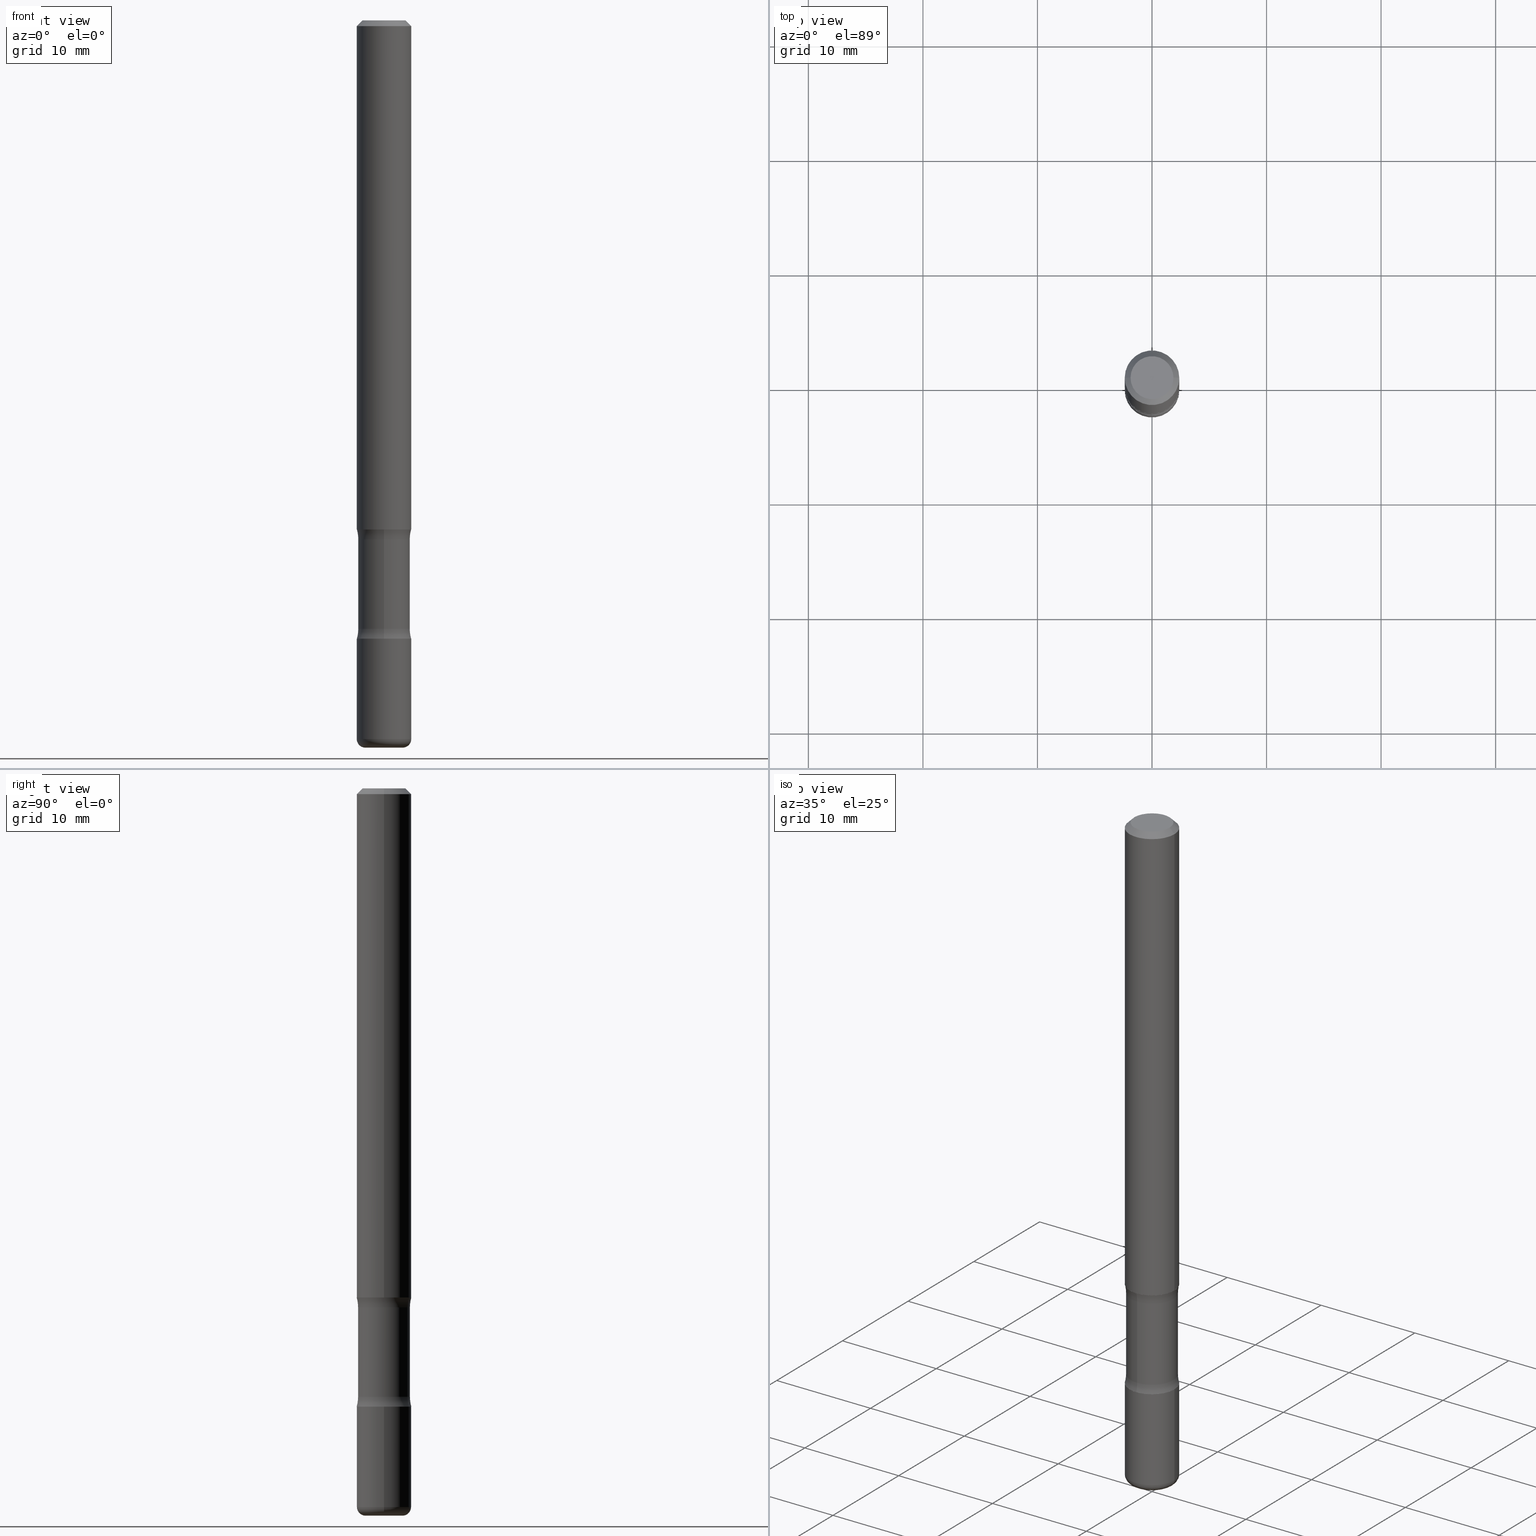
[diagram: canonical four-view strip — front | top / right | iso, engineering-drawing reading convention]
A machine part, canonical four-view strip (front | top / right | iso — engineering-drawing reading convention). The complete STEP part file that produces these views, byte-faithful:
ISO-10303-21;
HEADER;
FILE_DESCRIPTION (( 'STEP AP203' ),
    '1' );
FILE_NAME ('37780.STEP',
    '2024-03-02T00:15:42',
    ( '' ),
    ( '' ),
    'SwSTEP 2.0',
    'SolidWorks 2023',
    '' );
FILE_SCHEMA (( 'CONFIG_CONTROL_DESIGN' ));
ENDSEC;

DATA;
#1 = FACE_OUTER_BOUND ( 'NONE', #407, .T. ) ;
#2 = EDGE_CURVE ( 'NONE', #464, #239, #297, .T. ) ;
#3 = APPROVAL_DATE_TIME ( #451, #300 ) ;
#4 = ORIENTED_EDGE ( 'NONE', *, *, #142, .T. ) ;
#5 = CIRCLE ( 'NONE', #113, 0.07374999999999984346 ) ;
#6 = AXIS2_PLACEMENT_3D ( 'NONE', #68, #258, #172 ) ;
#7 = VERTEX_POINT ( 'NONE', #197 ) ;
#8 = PRODUCT_DEFINITION ( 'UNKNOWN', '', #61, #358 ) ;
#9 = DIRECTION ( 'NONE',  ( 6.982962677686265133E-15, 1.000000000000000000, -6.134676196298701332E-15 ) ) ;
#10 = DIRECTION ( 'NONE',  ( 1.000000000000000000, -6.982962677686268288E-15, 4.883557194083112901E-29 ) ) ;
#11 = DIRECTION ( 'NONE',  ( -6.982962677686265922E-15, -1.000000000000000000, 0.000000000000000000 ) ) ;
#12 = ORIENTED_EDGE ( 'NONE', *, *, #62, .F. ) ;
#13 = CARTESIAN_POINT ( 'NONE',  ( -0.09374999999999981959, 5.848231242562233185E-16, -0.02000000000000001776 ) ) ;
#14 = CARTESIAN_POINT ( 'NONE',  ( 0.06375000000000007050, -9.173867217810364919E-15, -2.500000000000000000 ) ) ;
#15 = DIRECTION ( 'NONE',  ( -1.000000000000000000, 6.982962677686267499E-15, 0.000000000000000000 ) ) ;
#16 = DIRECTION ( 'NONE',  ( 2.553476385947133355E-29, -3.336808337214295667E-15, -1.000000000000000000 ) ) ;
#17 = EDGE_LOOP ( 'NONE', ( #302, #115, #65, #373 ) ) ;
#18 = CARTESIAN_POINT ( 'NONE',  ( 4.890937612370276662E-31, -6.982962677686296539E-17, -0.02000000000000001776 ) ) ;
#19 = ORIENTED_EDGE ( 'NONE', *, *, #2, .F. ) ;
#20 = CARTESIAN_POINT ( 'NONE',  ( 0.000000000000000000, 0.000000000000000000, 0.000000000000000000 ) ) ;
#21 = CIRCLE ( 'NONE', #552, 0.09374999999999981959 ) ;
#22 = PLANE ( 'NONE',  #152 ) ;
#23 = CLOSED_SHELL ( 'NONE', ( #321, #29, #389, #167, #414, #501, #207, #75 ) ) ;
#24 = ADVANCED_FACE ( 'NONE', ( #319 ), #120, .T. ) ;
#25 = ORIENTED_EDGE ( 'NONE', *, *, #337, .F. ) ;
#26 = ORIENTED_EDGE ( 'NONE', *, *, #265, .T. ) ;
#27 = EDGE_LOOP ( 'NONE', ( #222, #38, #517, #162 ) ) ;
#28 = AXIS2_PLACEMENT_3D ( 'NONE', #359, #535, #538 ) ;
#29 = ADVANCED_FACE ( 'NONE', ( #493 ), #82, .F. ) ;
#30 = CARTESIAN_POINT ( 'NONE',  ( 1.494790448192259658E-15, 0.2140624999999937161, -1.783910210022205289 ) ) ;
#31 = CIRCLE ( 'NONE', #185, 0.06375000000000007050 ) ;
#32 = ORIENTED_EDGE ( 'NONE', *, *, #382, .F. ) ;
#33 = MECHANICAL_CONTEXT ( 'NONE', #155, 'mechanical' ) ;
#34 = EDGE_LOOP ( 'NONE', ( #456, #471, #324, #356 ) ) ;
#35 = CARTESIAN_POINT ( 'NONE',  ( 6.154174857873591467E-29, -8.670700971497045879E-15, -2.500000000000000000 ) ) ;
#36 = DIRECTION ( 'NONE',  ( 1.000000000000000000, 0.000000000000000000, 0.000000000000000000 ) ) ;
#37 = CARTESIAN_POINT ( 'NONE',  ( 4.279570410823988484E-29, -6.110092342975504671E-15, -1.750000000000000000 ) ) ;
#38 = ORIENTED_EDGE ( 'NONE', *, *, #51, .T. ) ;
#39 = CC_DESIGN_PERSON_AND_ORGANIZATION_ASSIGNMENT ( #50, #220, ( #73 ) ) ;
#40 = AXIS2_PLACEMENT_3D ( 'NONE', #20, #192, #190 ) ;
#41 = CIRCLE ( 'NONE', #455, 0.08906249999999993339 ) ;
#42 = ORIENTED_EDGE ( 'NONE', *, *, #201, .T. ) ;
#43 = AXIS2_PLACEMENT_3D ( 'NONE', #431, #89, #341 ) ;
#44 = LINE ( 'NONE', #384, #315 ) ;
#45 = LINE ( 'NONE', #439, #230 ) ;
#46 = PLANE ( 'NONE',  #353 ) ;
#47 = DATE_AND_TIME ( #186, #392 ) ;
#48 = CIRCLE ( 'NONE', #498, 0.07374999999999984346 ) ;
#49 = COORDINATED_UNIVERSAL_TIME_OFFSET ( 5, 0, .BEHIND. ) ;
#50 = PERSON_AND_ORGANIZATION ( #486, #231 ) ;
#51 = EDGE_CURVE ( 'NONE', #525, #7, #329, .T. ) ;
#52 = DIRECTION ( 'NONE',  ( -2.445468806185136597E-29, 3.491481338843145583E-15, 1.000000000000000000 ) ) ;
#53 = AXIS2_PLACEMENT_3D ( 'NONE', #306, #366, #446 ) ;
#54 = APPROVAL_STATUS ( 'not_yet_approved' ) ;
#55 = APPROVAL_PERSON_ORGANIZATION ( #93, #300, #140 ) ;
#56 = AXIS2_PLACEMENT_3D ( 'NONE', #417, #325, #553 ) ;
#57 = EDGE_LOOP ( 'NONE', ( #424, #494, #513, #429 ) ) ;
#58 = DIRECTION ( 'NONE',  ( 1.000000000000000000, -6.982962677686265922E-15, 0.000000000000000000 ) ) ;
#59 = DIRECTION ( 'NONE',  ( -2.445468806185136597E-29, 3.491481338843145583E-15, 1.000000000000000000 ) ) ;
#60 = DIRECTION ( 'NONE',  ( -2.445468806185136597E-29, 3.491481338843145583E-15, 1.000000000000000000 ) ) ;
#61 = PRODUCT_DEFINITION_FORMATION_WITH_SPECIFIED_SOURCE ( 'ANY', '', #210, .NOT_KNOWN. ) ;
#62 = EDGE_CURVE ( 'NONE', #526, #464, #541, .T. ) ;
#63 = DIRECTION ( 'NONE',  ( 6.982962677686265133E-15, 1.000000000000000000, -3.067338098149350666E-15 ) ) ;
#64 = DIRECTION ( 'NONE',  ( 6.982962677686265922E-15, 1.000000000000000000, -3.336808337214296061E-15 ) ) ;
#65 = ORIENTED_EDGE ( 'NONE', *, *, #470, .T. ) ;
#66 = DIRECTION ( 'NONE',  ( -2.445468806185136877E-29, 3.491481338843145188E-15, 1.000000000000000000 ) ) ;
#67 = ORIENTED_EDGE ( 'NONE', *, *, #109, .F. ) ;
#68 = CARTESIAN_POINT ( 'NONE',  ( 5.196621213143415268E-29, -7.419397845041685201E-15, -2.125000000000000000 ) ) ;
#69 = VERTEX_POINT ( 'NONE', #298 ) ;
#70 = DIRECTION ( 'NONE',  ( -6.982962677686265922E-15, -1.000000000000000000, 3.336808337214295667E-15 ) ) ;
#71 = DIRECTION ( 'NONE',  ( 2.553476385947133355E-29, -3.336808337214295667E-15, -1.000000000000000000 ) ) ;
#72 = AXIS2_PLACEMENT_3D ( 'NONE', #139, #105, #444 ) ;
#73 = SECURITY_CLASSIFICATION ( '', '', #360 ) ;
#74 = LENGTH_MEASURE_WITH_UNIT ( LENGTH_MEASURE( 0.02539999999999999897 ), #296 );
#75 = ADVANCED_FACE ( 'NONE', ( #247 ), #165, .T. ) ;
#76 = DIRECTION ( 'NONE',  ( 2.438088387897960049E-29, -3.491481338843145188E-15, -1.000000000000000000 ) ) ;
#77 = EDGE_CURVE ( 'NONE', #246, #217, #546, .T. ) ;
#78 = CARTESIAN_POINT ( 'NONE',  ( 5.110032292609207884E-29, -7.306245973522905960E-15, -2.091089789977795821 ) ) ;
#79 = LINE ( 'NONE', #252, #393 ) ;
#80 = DIRECTION ( 'NONE',  ( 1.000000000000000000, -6.982962677686269866E-15, 0.000000000000000000 ) ) ;
#81 = CIRCLE ( 'NONE', #403, 0.09375000000000004163 ) ;
#82 = TOROIDAL_SURFACE ( 'NONE', #489, 0.2140624999999999889, 0.1250000000000000278 ) ;
#83 = ORIENTED_EDGE ( 'NONE', *, *, #268, .T. ) ;
#84 = FACE_OUTER_BOUND ( 'NONE', #504, .T. ) ;
#85 = DIRECTION ( 'NONE',  ( -1.000000000000000000, 6.982962677686265922E-15, -4.876176775795935793E-29 ) ) ;
#86 = FACE_OUTER_BOUND ( 'NONE', #57, .T. ) ;
#87 = FACE_OUTER_BOUND ( 'NONE', #34, .T. ) ;
#88 = PERSON_AND_ORGANIZATION_ROLE ( 'creator' ) ;
#89 = DIRECTION ( 'NONE',  ( -2.445468806185136597E-29, 3.491481338843145583E-15, 1.000000000000000000 ) ) ;
#90 = COORDINATED_UNIVERSAL_TIME_OFFSET ( 5, 0, .BEHIND. ) ;
#91 = AXIS2_PLACEMENT_3D ( 'NONE', #410, #16, #317 ) ;
#92 = APPROVAL_PERSON_ORGANIZATION ( #398, #255, #394 ) ;
#93 = PERSON_AND_ORGANIZATION ( #486, #231 ) ;
#94 = TOROIDAL_SURFACE ( 'NONE', #56, 0.2140624999999999889, 0.1250000000000000278 ) ;
#95 = ORIENTED_EDGE ( 'NONE', *, *, #335, .F. ) ;
#96 = CARTESIAN_POINT ( 'NONE',  ( 6.219201134814836160E-16, 0.08906249999999261979, -2.091089789977795821 ) ) ;
#97 = DIRECTION ( 'NONE',  ( 1.000000000000000000, -6.982962677686265922E-15, 0.000000000000000000 ) ) ;
#98 = CYLINDRICAL_SURFACE ( 'NONE', #496, 0.09374999999999991673 ) ;
#99 = CARTESIAN_POINT ( 'NONE',  ( -0.06375000000000007050, -8.170987912895507894E-15, -2.470000000000000639 ) ) ;
#100 = SHAPE_DEFINITION_REPRESENTATION ( #183, #163 ) ;
#101 = DIRECTION ( 'NONE',  ( 2.445468806185136597E-29, -3.491481338843145583E-15, -1.000000000000000000 ) ) ;
#102 = CARTESIAN_POINT ( 'NONE',  ( 6.040307951277289098E-29, -8.623958906942573151E-15, -2.470000000000000639 ) ) ;
#103 = TOROIDAL_SURFACE ( 'NONE', #413, 0.06375000000000007050, 0.02999999999999971440 ) ;
#104 = EDGE_CURVE ( 'NONE', #7, #237, #118, .T. ) ;
#105 = DIRECTION ( 'NONE',  ( 1.000000000000000000, -6.860497997771530774E-15, 4.842693077587735886E-29 ) ) ;
#106 = CARTESIAN_POINT ( 'NONE',  ( -0.09374999999999994449, -7.957825092167479227E-15, -2.470000000000000639 ) ) ;
#107 = ORIENTED_EDGE ( 'NONE', *, *, #488, .F. ) ;
#108 = DIRECTION ( 'NONE',  ( 2.553476385947133355E-29, -3.336808337214295667E-15, -1.000000000000000000 ) ) ;
#109 = EDGE_CURVE ( 'NONE', #322, #217, #79, .T. ) ;
#110 = CIRCLE ( 'NONE', #28, 0.09375000000000002776 ) ;
#111 = ORIENTED_EDGE ( 'NONE', *, *, #450, .F. ) ;
#112 = AXIS2_PLACEMENT_3D ( 'NONE', #511, #385, #557 ) ;
#113 = AXIS2_PLACEMENT_3D ( 'NONE', #235, #59, #232 ) ;
#114 = CC_DESIGN_PERSON_AND_ORGANIZATION_ASSIGNMENT ( #514, #551, ( #210 ) ) ;
#115 = ORIENTED_EDGE ( 'NONE', *, *, #227, .T. ) ;
#116 = CARTESIAN_POINT ( 'NONE',  ( 5.113694852322927974E-29, -7.301000979552905916E-15, -2.091089789977795821 ) ) ;
#117 = CARTESIAN_POINT ( 'NONE',  ( 4.325656488947447574E-29, -6.281246590105103764E-15, -1.783910210022204623 ) ) ;
#118 = LINE ( 'NONE', #204, #225 ) ;
#119 = DIRECTION ( 'NONE',  ( -2.445468806185136597E-29, 3.491481338843145583E-15, 1.000000000000000000 ) ) ;
#120 = CONICAL_SURFACE ( 'NONE', #245, 0.09374999999999981959, 0.7853981633974472798 ) ;
#121 = CARTESIAN_POINT ( 'NONE',  ( 4.338651280918389502E-29, -6.262637308385086581E-15, -1.783910210022204401 ) ) ;
#122 = CARTESIAN_POINT ( 'NONE',  ( 4.239067568413239630E-29, -6.168094718586322946E-15, -1.750000000000000000 ) ) ;
#123 = ORIENTED_EDGE ( 'NONE', *, *, #420, .F. ) ;
#124 = CARTESIAN_POINT ( 'NONE',  ( -0.07374999999999984346, 5.499083108677921624E-16, -3.723527850031186263E-30 ) ) ;
#125 = APPROVAL_DATE_TIME ( #129, #198 ) ;
#126 = VERTEX_POINT ( 'NONE', #400 ) ;
#127 = ORIENTED_EDGE ( 'NONE', *, *, #488, .T. ) ;
#128 = DIRECTION ( 'NONE',  ( 6.860497997771531562E-15, 1.000000000000000000, 0.000000000000000000 ) ) ;
#129 = DATE_AND_TIME ( #469, #545 ) ;
#130 = AXIS2_PLACEMENT_3D ( 'NONE', #216, #396, #97 ) ;
#131 = EDGE_CURVE ( 'NONE', #466, #322, #274, .T. ) ;
#132 = CC_DESIGN_APPROVAL ( #255, ( #73 ) ) ;
#133 = DIRECTION ( 'NONE',  ( 1.000000000000000000, -6.982962677686269866E-15, 0.000000000000000000 ) ) ;
#134 = DIRECTION ( 'NONE',  ( 6.982962677686265922E-15, 1.000000000000000000, -3.336808337214295667E-15 ) ) ;
#135 = CARTESIAN_POINT ( 'NONE',  ( 4.279570410823988484E-29, -6.110092342975504671E-15, -1.750000000000000000 ) ) ;
#136 = EDGE_CURVE ( 'NONE', #483, #237, #405, .T. ) ;
#137 = CARTESIAN_POINT ( 'NONE',  ( 0.09374999999999981959, -7.130013140679428044E-16, -0.02000000000000001776 ) ) ;
#138 = PERSON_AND_ORGANIZATION_ROLE ( 'design_supplier' ) ;
#139 = CARTESIAN_POINT ( 'NONE',  ( -1.468575352647916884E-15, -0.2140625000000072886, -2.091089789977794933 ) ) ;
#140 = APPROVAL_ROLE ( '' ) ;
#141 = FACE_OUTER_BOUND ( 'NONE', #27, .T. ) ;
#142 = EDGE_CURVE ( 'NONE', #69, #239, #41, .T. ) ;
#143 = AXIS2_PLACEMENT_3D ( 'NONE', #99, #473, #144 ) ;
#144 = DIRECTION ( 'NONE',  ( -1.000000000000000000, 7.105427357600993970E-15, 0.000000000000000000 ) ) ;
#145 = DIRECTION ( 'NONE',  ( 1.000000000000000000, -6.982962677686266711E-15, 4.876176775795935793E-29 ) ) ;
#146 = PERSON_AND_ORGANIZATION ( #486, #231 ) ;
#147 = CARTESIAN_POINT ( 'NONE',  ( 6.546527510331397661E-16, 0.09374999999999261702, -2.125000000000000444 ) ) ;
#148 = EDGE_LOOP ( 'NONE', ( #500, #484 ) ) ;
#149 = DIRECTION ( 'NONE',  ( -2.445468806185136597E-29, 3.491481338843145583E-15, 1.000000000000000000 ) ) ;
#150 = DIRECTION ( 'NONE',  ( 1.000000000000000000, -6.982962677686267499E-15, 0.000000000000000000 ) ) ;
#151 = FACE_OUTER_BOUND ( 'NONE', #422, .T. ) ;
#152 = AXIS2_PLACEMENT_3D ( 'NONE', #367, #156, #277 ) ;
#153 = DIRECTION ( 'NONE',  ( 1.000000000000000000, -6.982962677686269866E-15, 0.000000000000000000 ) ) ;
#154 = ORIENTED_EDGE ( 'NONE', *, *, #375, .T. ) ;
#155 = APPLICATION_CONTEXT ( 'configuration controlled 3d designs of mechanical parts and assemblies' ) ;
#156 = DIRECTION ( 'NONE',  ( 2.438088387897960049E-29, -3.491481338843145188E-15, -1.000000000000000000 ) ) ;
#157 = DIMENSIONAL_EXPONENTS ( 1.000000000000000000, 0.000000000000000000, 0.000000000000000000, 0.000000000000000000, 0.000000000000000000, 0.000000000000000000, 0.000000000000000000 ) ;
#158 = EDGE_LOOP ( 'NONE', ( #26, #419, #379, #111 ) ) ;
#159 = AXIS2_PLACEMENT_3D ( 'NONE', #555, #76, #85 ) ;
#160 = LOCAL_TIME ( 19, 15, 42.00000000000000000, #49 ) ;
#161 = ORIENTED_EDGE ( 'NONE', *, *, #77, .T. ) ;
#162 = ORIENTED_EDGE ( 'NONE', *, *, #136, .F. ) ;
#163 = ADVANCED_BREP_SHAPE_REPRESENTATION ( '37780', ( #530, #532, #339, #304 ), #544 ) ;
#164 = DIRECTION ( 'NONE',  ( -2.445468806185136597E-29, 3.491481338843145583E-15, 1.000000000000000000 ) ) ;
#165 = CYLINDRICAL_SURFACE ( 'NONE', #478, 0.08906249999999993339 ) ;
#166 = DIRECTION ( 'NONE',  ( 0.000000000000000000, 0.000000000000000000, 1.000000000000000000 ) ) ;
#167 = ADVANCED_FACE ( 'NONE', ( #276 ), #94, .F. ) ;
#168 = EDGE_CURVE ( 'NONE', #318, #253, #554, .T. ) ;
#169 = APPLICATION_PROTOCOL_DEFINITION ( 'international standard', 'config_control_design', 1994, #508 ) ;
#170 = CC_DESIGN_SECURITY_CLASSIFICATION ( #73, ( #61 ) ) ;
#171 = CARTESIAN_POINT ( 'NONE',  ( 0.09375000000000005551, -6.546527510330878985E-16, 4.571415727308692608E-30 ) ) ;
#172 = DIRECTION ( 'NONE',  ( 6.982962677686265922E-15, 1.000000000000000000, -2.913971193241879977E-15 ) ) ;
#173 = CARTESIAN_POINT ( 'NONE',  ( -6.270923951087611034E-16, -0.08906250000000623390, -1.783910210022204401 ) ) ;
#174 = CARTESIAN_POINT ( 'NONE',  ( -0.09375000000000002776, -7.355544561217034463E-15, -2.125000000000000000 ) ) ;
#175 = DIRECTION ( 'NONE',  ( 2.553476385947133355E-29, -3.336808337214295667E-15, -1.000000000000000000 ) ) ;
#176 = CARTESIAN_POINT ( 'NONE',  ( 4.279570410823988484E-29, -6.110092342975504671E-15, -1.750000000000000000 ) ) ;
#177 = FACE_OUTER_BOUND ( 'NONE', #250, .T. ) ;
#178 = CIRCLE ( 'NONE', #91, 0.08906249999999994726 ) ;
#179 = DIRECTION ( 'NONE',  ( -2.445468806185136597E-29, 3.491481338843145583E-15, 1.000000000000000000 ) ) ;
#180 = CARTESIAN_POINT ( 'NONE',  ( 6.154174857873591467E-29, -8.670700971497045879E-15, -2.500000000000000000 ) ) ;
#181 = CIRCLE ( 'NONE', #72, 0.1250000000000000278 ) ;
#182 = DIRECTION ( 'NONE',  ( 6.982962677686265922E-15, 1.000000000000000000, -2.913971193241877611E-15 ) ) ;
#183 = PRODUCT_DEFINITION_SHAPE ( 'NONE', 'NONE',  #8 ) ;
#184 = CIRCLE ( 'NONE', #279, 0.06375000000000007050 ) ;
#185 = AXIS2_PLACEMENT_3D ( 'NONE', #338, #443, #386 ) ;
#186 = CALENDAR_DATE ( 2024, 1, 3 ) ;
#187 = AXIS2_PLACEMENT_3D ( 'NONE', #409, #101, #15 ) ;
#188 = EDGE_LOOP ( 'NONE', ( #263, #497, #309, #412 ) ) ;
#189 = CARTESIAN_POINT ( 'NONE',  ( -0.06375000000000007050, -8.116778722614140245E-15, -2.500000000000000000 ) ) ;
#190 = DIRECTION ( 'NONE',  ( 1.000000000000000000, -6.982962677686266711E-15, 4.876176775795935793E-29 ) ) ;
#191 = PERSON_AND_ORGANIZATION ( #486, #231 ) ;
#192 = DIRECTION ( 'NONE',  ( -2.445468806185136597E-29, 3.491481338843145583E-15, 1.000000000000000000 ) ) ;
#193 = ORIENTED_EDGE ( 'NONE', *, *, #201, .F. ) ;
#194 = DIRECTION ( 'NONE',  ( 2.445468806185136597E-29, -3.491481338843145583E-15, -1.000000000000000000 ) ) ;
#195 = EDGE_LOOP ( 'NONE', ( #502, #123, #326, #281 ) ) ;
#196 = AXIS2_PLACEMENT_3D ( 'NONE', #37, #236, #133 ) ;
#197 = CARTESIAN_POINT ( 'NONE',  ( 0.09375000000000004163, -6.764745094008592175E-15, -1.750000000000000000 ) ) ;
#198 = APPROVAL ( #510, 'UNSPECIFIED' ) ;
#199 = AXIS2_PLACEMENT_3D ( 'NONE', #357, #149, #534 ) ;
#200 = DIRECTION ( 'NONE',  ( -1.000000000000000000, 6.982962677686265922E-15, -4.883557194083112901E-29 ) ) ;
#201 = EDGE_CURVE ( 'NONE', #495, #246, #290, .T. ) ;
#202 = FACE_OUTER_BOUND ( 'NONE', #242, .T. ) ;
#203 = CARTESIAN_POINT ( 'NONE',  ( 5.196621213143415268E-29, -7.419397845041685201E-15, -2.125000000000000000 ) ) ;
#204 = CARTESIAN_POINT ( 'NONE',  ( 0.09374999999999991673, -6.546527510330869125E-16, 4.571415727308685602E-30 ) ) ;
#205 = DIRECTION ( 'NONE',  ( -6.982962677686265922E-15, -1.000000000000000000, 0.000000000000000000 ) ) ;
#206 = LINE ( 'NONE', #383, #323 ) ;
#207 = ADVANCED_FACE ( 'NONE', ( #331 ), #461, .F. ) ;
#208 = CARTESIAN_POINT ( 'NONE',  ( -1.468575352647924772E-15, -0.2140625000000062339, -1.783910210022203513 ) ) ;
#209 =( CONVERSION_BASED_UNIT ( 'INCH', #74 ) LENGTH_UNIT ( ) NAMED_UNIT ( #157 ) );
#210 = PRODUCT ( '37780', '37780', '', ( #33 ) ) ;
#211 = DIRECTION ( 'NONE',  ( -2.445468806185136877E-29, 3.491481338843145188E-15, 1.000000000000000000 ) ) ;
#212 = CIRCLE ( 'NONE', #130, 0.09375000000000009714 ) ;
#213 = AXIS2_PLACEMENT_3D ( 'NONE', #117, #436, #342 ) ;
#214 = ORIENTED_EDGE ( 'NONE', *, *, #301, .T. ) ;
#215 = DIRECTION ( 'NONE',  ( 2.553476385947133355E-29, -3.336808337214295667E-15, -1.000000000000000000 ) ) ;
#216 = CARTESIAN_POINT ( 'NONE',  ( 6.040307951277289098E-29, -8.623958906942573151E-15, -2.470000000000000639 ) ) ;
#217 = VERTEX_POINT ( 'NONE', #174 ) ;
#218 = APPROVAL_DATE_TIME ( #47, #255 ) ;
#219 = ORIENTED_EDGE ( 'NONE', *, *, #269, .F. ) ;
#220 = PERSON_AND_ORGANIZATION_ROLE ( 'classification_officer' ) ;
#221 = DIRECTION ( 'NONE',  ( -2.445468806185136597E-29, 3.491481338843145583E-15, 1.000000000000000000 ) ) ;
#222 = ORIENTED_EDGE ( 'NONE', *, *, #515, .F. ) ;
#223 = AXIS2_PLACEMENT_3D ( 'NONE', #512, #60, #558 ) ;
#224 = UNCERTAINTY_MEASURE_WITH_UNIT (LENGTH_MEASURE( 1.000000000000000082E-05 ), #209, 'distance_accuracy_value', 'NONE');
#225 = VECTOR ( 'NONE', #426, 39.37007874015748143 ) ;
#226 = DATE_AND_TIME ( #267, #160 ) ;
#227 = EDGE_CURVE ( 'NONE', #499, #318, #433, .T. ) ;
#228 = DIRECTION ( 'NONE',  ( 2.553476385947133355E-29, -3.336808337214295667E-15, -1.000000000000000000 ) ) ;
#229 = FACE_OUTER_BOUND ( 'NONE', #148, .T. ) ;
#230 = VECTOR ( 'NONE', #462, 39.37007874015748143 ) ;
#231 = ORGANIZATION ( 'UNSPECIFIED', 'UNSPECIFIED', '' ) ;
#232 = DIRECTION ( 'NONE',  ( 1.000000000000000000, -6.982962677686266711E-15, 4.876176775795935793E-29 ) ) ;
#233 = DIRECTION ( 'NONE',  ( 2.553476385947133355E-29, -3.336808337214295667E-15, -1.000000000000000000 ) ) ;
#234 = CLOSED_SHELL ( 'NONE', ( #330, #447, #310, #262, #401, #520 ) ) ;
#235 = CARTESIAN_POINT ( 'NONE',  ( 0.000000000000000000, 0.000000000000000000, 0.000000000000000000 ) ) ;
#236 = DIRECTION ( 'NONE',  ( -2.445468806185136597E-29, 3.491481338843145583E-15, 1.000000000000000000 ) ) ;
#237 = VERTEX_POINT ( 'NONE', #137 ) ;
#238 = EDGE_LOOP ( 'NONE', ( #445, #25 ) ) ;
#239 = VERTEX_POINT ( 'NONE', #96 ) ;
#240 = CARTESIAN_POINT ( 'NONE',  ( -6.110131029264649859E-16, -0.08906250000000860700, -2.499999999999999556 ) ) ;
#241 = ORIENTED_EDGE ( 'NONE', *, *, #474, .T. ) ;
#242 = EDGE_LOOP ( 'NONE', ( #107, #275 ) ) ;
#243 = AXIS2_PLACEMENT_3D ( 'NONE', #121, #354, #441 ) ;
#244 = APPLICATION_PROTOCOL_DEFINITION ( 'international standard', 'config_control_design', 1994, #155 ) ;
#245 = AXIS2_PLACEMENT_3D ( 'NONE', #18, #194, #368 ) ;
#246 = VERTEX_POINT ( 'NONE', #388 ) ;
#247 = FACE_OUTER_BOUND ( 'NONE', #17, .T. ) ;
#248 = DIRECTION ( 'NONE',  ( -1.000000000000000000, 6.982962677686265922E-15, -4.883557194083112901E-29 ) ) ;
#249 = DIRECTION ( 'NONE',  ( 2.553476385947133355E-29, -3.336808337214295667E-15, -1.000000000000000000 ) ) ;
#250 = EDGE_LOOP ( 'NONE', ( #548, #292 ) ) ;
#251 = PLANE ( 'NONE',  #257 ) ;
#252 = CARTESIAN_POINT ( 'NONE',  ( -0.09375000000000005551, 6.661338147750943187E-16, -4.611501647113976798E-30 ) ) ;
#253 = VERTEX_POINT ( 'NONE', #449 ) ;
#254 = CARTESIAN_POINT ( 'NONE',  ( 8.726388948129611336E-30, -1.361158663068067946E-14, -2.125000000000000000 ) ) ;
#255 = APPROVAL ( #311, 'UNSPECIFIED' ) ;
#256 = AXIS2_PLACEMENT_3D ( 'NONE', #361, #531, #153 ) ;
#257 = AXIS2_PLACEMENT_3D ( 'NONE', #254, #432, #70 ) ;
#258 = DIRECTION ( 'NONE',  ( 2.553476385947133355E-29, -3.336808337214295667E-15, -1.000000000000000000 ) ) ;
#259 = DIRECTION ( 'NONE',  ( -2.438088387897960049E-29, 3.491481338843145188E-15, 1.000000000000000000 ) ) ;
#260 = COORDINATED_UNIVERSAL_TIME_OFFSET ( 5, 0, .BEHIND. ) ;
#261 = CC_DESIGN_PERSON_AND_ORGANIZATION_ASSIGNMENT ( #191, #88, ( #61 ) ) ;
#262 = ADVANCED_FACE ( 'NONE', ( #86 ), #378, .T. ) ;
#263 = ORIENTED_EDGE ( 'NONE', *, *, #227, .F. ) ;
#264 = ORIENTED_EDGE ( 'NONE', *, *, #438, .T. ) ;
#265 = EDGE_CURVE ( 'NONE', #423, #466, #31, .T. ) ;
#266 = CARTESIAN_POINT ( 'NONE',  ( 0.000000000000000000, 0.000000000000000000, 0.000000000000000000 ) ) ;
#267 = CALENDAR_DATE ( 2024, 1, 3 ) ;
#268 = EDGE_CURVE ( 'NONE', #526, #69, #181, .T. ) ;
#269 = EDGE_CURVE ( 'NONE', #365, #253, #327, .T. ) ;
#270 = AXIS2_PLACEMENT_3D ( 'NONE', #208, #347, #128 ) ;
#271 = ORIENTED_EDGE ( 'NONE', *, *, #282, .T. ) ;
#272 = LOCAL_TIME ( 19, 15, 42.00000000000000000, #479 ) ;
#273 = DIRECTION ( 'NONE',  ( 1.000000000000000000, -6.982962677686268288E-15, 0.000000000000000000 ) ) ;
#274 = CIRCLE ( 'NONE', #143, 0.02999999999999971440 ) ;
#275 = ORIENTED_EDGE ( 'NONE', *, *, #51, .F. ) ;
#276 = FACE_OUTER_BOUND ( 'NONE', #370, .T. ) ;
#277 = DIRECTION ( 'NONE',  ( -1.000000000000000000, 6.982962677686265922E-15, -4.876176775795935793E-29 ) ) ;
#278 = ADVANCED_FACE ( 'NONE', ( #141 ), #287, .T. ) ;
#279 = AXIS2_PLACEMENT_3D ( 'NONE', #314, #487, #273 ) ;
#280 = AXIS2_PLACEMENT_3D ( 'NONE', #435, #248, #11 ) ;
#281 = ORIENTED_EDGE ( 'NONE', *, *, #136, .T. ) ;
#282 = EDGE_CURVE ( 'NONE', #253, #365, #527, .T. ) ;
#283 = EDGE_LOOP ( 'NONE', ( #12, #83, #4, #19 ) ) ;
#284 = ORIENTED_EDGE ( 'NONE', *, *, #380, .F. ) ;
#285 = AXIS2_PLACEMENT_3D ( 'NONE', #348, #215, #182 ) ;
#286 = CARTESIAN_POINT ( 'NONE',  ( -0.09374999999999991673, 6.661338147750933326E-16, -4.611501647113969791E-30 ) ) ;
#287 = CYLINDRICAL_SURFACE ( 'NONE', #223, 0.09374999999999991673 ) ;
#288 = ORIENTED_EDGE ( 'NONE', *, *, #533, .F. ) ;
#289 = APPROVAL_ROLE ( '' ) ;
#290 = LINE ( 'NONE', #171, #352 ) ;
#291 = DIRECTION ( 'NONE',  ( 6.982962677686265922E-15, 1.000000000000000000, -2.913971193241877611E-15 ) ) ;
#292 = ORIENTED_EDGE ( 'NONE', *, *, #62, .T. ) ;
#293 = FACE_OUTER_BOUND ( 'NONE', #458, .T. ) ;
#294 = CARTESIAN_POINT ( 'NONE',  ( 6.040307951277289098E-29, -8.623958906942573151E-15, -2.470000000000000639 ) ) ;
#295 = EDGE_LOOP ( 'NONE', ( #284, #241, #264, #288 ) ) ;
#296 =( LENGTH_UNIT ( ) NAMED_UNIT ( * ) SI_UNIT ( $, .METRE. ) );
#297 = CIRCLE ( 'NONE', #280, 0.1250000000000000278 ) ;
#298 = CARTESIAN_POINT ( 'NONE',  ( -6.270923951087521301E-16, -0.08906250000000723310, -2.091089789977795377 ) ) ;
#299 =( NAMED_UNIT ( * ) SI_UNIT ( $, .STERADIAN. ) SOLID_ANGLE_UNIT ( ) );
#300 = APPROVAL ( #54, 'UNSPECIFIED' ) ;
#301 = EDGE_CURVE ( 'NONE', #239, #69, #350, .T. ) ;
#302 = ORIENTED_EDGE ( 'NONE', *, *, #418, .F. ) ;
#303 = AXIS2_PLACEMENT_3D ( 'NONE', #135, #259, #428 ) ;
#304 = AXIS2_PLACEMENT_3D ( 'NONE', #549, #166, #36 ) ;
#305 = AXIS2_PLACEMENT_3D ( 'NONE', #30, #200, #205 ) ;
#306 = CARTESIAN_POINT ( 'NONE',  ( 5.149934974793610063E-16, 0.07374999999999984346, -2.574967487396814399E-16 ) ) ;
#307 = CARTESIAN_POINT ( 'NONE',  ( 6.040307951277289098E-29, -8.623958906942573151E-15, -2.470000000000000639 ) ) ;
#308 = DATE_TIME_ROLE ( 'creation_date' ) ;
#309 = ORIENTED_EDGE ( 'NONE', *, *, #269, .T. ) ;
#310 = ADVANCED_FACE ( 'NONE', ( #416 ), #22, .T. ) ;
#311 = APPROVAL_STATUS ( 'not_yet_approved' ) ;
#312 = EDGE_LOOP ( 'NONE', ( #127, #340, #363, #542 ) ) ;
#313 = FACE_OUTER_BOUND ( 'NONE', #188, .T. ) ;
#314 = CARTESIAN_POINT ( 'NONE',  ( 6.113672015462842613E-29, -8.728703347107864943E-15, -2.500000000000000000 ) ) ;
#315 = VECTOR ( 'NONE', #437, 39.37007874015748143 ) ;
#316 = FACE_OUTER_BOUND ( 'NONE', #158, .T. ) ;
#317 = DIRECTION ( 'NONE',  ( 6.982962677686265133E-15, 1.000000000000000000, -3.067338098149349877E-15 ) ) ;
#318 = VERTEX_POINT ( 'NONE', #521 ) ;
#319 = FACE_OUTER_BOUND ( 'NONE', #295, .T. ) ;
#320 = ORIENTED_EDGE ( 'NONE', *, *, #364, .F. ) ;
#321 = ADVANCED_FACE ( 'NONE', ( #87 ), #440, .T. ) ;
#322 = VERTEX_POINT ( 'NONE', #106 ) ;
#323 = VECTOR ( 'NONE', #334, 39.37007874015748143 ) ;
#324 = ORIENTED_EDGE ( 'NONE', *, *, #301, .F. ) ;
#325 = DIRECTION ( 'NONE',  ( 2.553476385947133355E-29, -3.336808337214295667E-15, -1.000000000000000000 ) ) ;
#326 = ORIENTED_EDGE ( 'NONE', *, *, #533, .T. ) ;
#327 = CIRCLE ( 'NONE', #285, 0.09375000000000009714 ) ;
#328 = PERSON_AND_ORGANIZATION ( #486, #231 ) ;
#329 = CIRCLE ( 'NONE', #196, 0.09375000000000004163 ) ;
#330 = ADVANCED_FACE ( 'NONE', ( #151 ), #460, .T. ) ;
#331 = FACE_OUTER_BOUND ( 'NONE', #351, .T. ) ;
#332 = DIRECTION ( 'NONE',  ( 1.000000000000000000, -6.982962677686270655E-15, 0.000000000000000000 ) ) ;
#333 = ORIENTED_EDGE ( 'NONE', *, *, #408, .F. ) ;
#334 = DIRECTION ( 'NONE',  ( 2.553476385947133355E-29, -3.336808337214295667E-15, -1.000000000000000000 ) ) ;
#335 = EDGE_CURVE ( 'NONE', #464, #526, #110, .T. ) ;
#336 = PLANE ( 'NONE',  #159 ) ;
#337 = EDGE_CURVE ( 'NONE', #466, #423, #184, .T. ) ;
#338 = CARTESIAN_POINT ( 'NONE',  ( 6.113672015462842613E-29, -8.728703347107864943E-15, -2.500000000000000000 ) ) ;
#339 = MANIFOLD_SOLID_BREP ( 'Body-Move/Copy2[4]', #23 ) ;
#340 = ORIENTED_EDGE ( 'NONE', *, *, #515, .T. ) ;
#341 = DIRECTION ( 'NONE',  ( 1.000000000000000000, -6.982962677686266711E-15, 4.876176775795935793E-29 ) ) ;
#342 = DIRECTION ( 'NONE',  ( 6.982962677686265133E-15, 1.000000000000000000, -3.067338098149349877E-15 ) ) ;
#343 = AXIS2_PLACEMENT_3D ( 'NONE', #78, #233, #516 ) ;
#344 = AXIS2_PLACEMENT_3D ( 'NONE', #294, #179, #346 ) ;
#345 = EDGE_CURVE ( 'NONE', #495, #322, #430, .T. ) ;
#346 = DIRECTION ( 'NONE',  ( 1.000000000000000000, -6.982962677686268288E-15, 4.883557194083112901E-29 ) ) ;
#347 = DIRECTION ( 'NONE',  ( 1.000000000000000000, -6.860497997771530774E-15, 4.842693077587735886E-29 ) ) ;
#348 = CARTESIAN_POINT ( 'NONE',  ( 4.239067568413239630E-29, -6.168094718586322946E-15, -1.750000000000000000 ) ) ;
#349 = CARTESIAN_POINT ( 'NONE',  ( 4.279570410823988484E-29, -6.110092342975504671E-15, -1.750000000000000000 ) ) ;
#350 = CIRCLE ( 'NONE', #343, 0.08906249999999993339 ) ;
#351 = EDGE_LOOP ( 'NONE', ( #369, #95, #454, #214 ) ) ;
#352 = VECTOR ( 'NONE', #66, 39.37007874015748143 ) ;
#353 = AXIS2_PLACEMENT_3D ( 'NONE', #176, #523, #134 ) ;
#354 = DIRECTION ( 'NONE',  ( 2.553476385947133355E-29, -3.336808337214295667E-15, -1.000000000000000000 ) ) ;
#355 = DATE_AND_TIME ( #402, #272 ) ;
#356 = ORIENTED_EDGE ( 'NONE', *, *, #470, .F. ) ;
#357 = CARTESIAN_POINT ( 'NONE',  ( 5.196621213143415268E-29, -7.419397845041685201E-15, -2.125000000000000000 ) ) ;
#358 = DESIGN_CONTEXT ( 'detailed design', #508, 'design' ) ;
#359 = CARTESIAN_POINT ( 'NONE',  ( 5.196621213143415268E-29, -7.419397845041685201E-15, -2.125000000000000000 ) ) ;
#360 = SECURITY_CLASSIFICATION_LEVEL ( 'unclassified' ) ;
#361 = CARTESIAN_POINT ( 'NONE',  ( 0.06375000000000007050, -9.069122777645073127E-15, -2.470000000000000639 ) ) ;
#362 = DIRECTION ( 'NONE',  ( -2.445468806185136597E-29, 3.491481338843145583E-15, 1.000000000000000000 ) ) ;
#363 = ORIENTED_EDGE ( 'NONE', *, *, #438, .F. ) ;
#364 = EDGE_CURVE ( 'NONE', #318, #499, #178, .T. ) ;
#365 = VERTEX_POINT ( 'NONE', #491 ) ;
#366 = DIRECTION ( 'NONE',  ( 2.438088387897960049E-29, -3.491481338843145188E-15, -1.000000000000000000 ) ) ;
#367 = CARTESIAN_POINT ( 'NONE',  ( 6.113672015462842613E-29, -8.728703347107864943E-15, -2.500000000000000000 ) ) ;
#368 = DIRECTION ( 'NONE',  ( -1.000000000000000000, 6.982962677686267499E-15, 0.000000000000000000 ) ) ;
#369 = ORIENTED_EDGE ( 'NONE', *, *, #268, .F. ) ;
#370 = EDGE_LOOP ( 'NONE', ( #333, #320, #397, #271 ) ) ;
#371 = FACE_OUTER_BOUND ( 'NONE', #312, .T. ) ;
#372 = ADVANCED_FACE ( 'NONE', ( #229 ), #529, .F. ) ;
#373 = ORIENTED_EDGE ( 'NONE', *, *, #142, .F. ) ;
#374 = DIRECTION ( 'NONE',  ( 2.553476385947133355E-29, -3.336808337214295667E-15, -1.000000000000000000 ) ) ;
#375 = EDGE_CURVE ( 'NONE', #322, #495, #212, .T. ) ;
#376 = PRODUCT_RELATED_PRODUCT_CATEGORY ( 'detail', '', ( #210 ) ) ;
#377 = AXIS2_PLACEMENT_3D ( 'NONE', #180, #228, #9 ) ;
#378 = TOROIDAL_SURFACE ( 'NONE', #344, 0.06375000000000007050, 0.02999999999999971440 ) ;
#379 = ORIENTED_EDGE ( 'NONE', *, *, #345, .F. ) ;
#380 = EDGE_CURVE ( 'NONE', #126, #399, #48, .T. ) ;
#381 = ORIENTED_EDGE ( 'NONE', *, *, #282, .F. ) ;
#382 = EDGE_CURVE ( 'NONE', #217, #246, #452, .T. ) ;
#383 = CARTESIAN_POINT ( 'NONE',  ( 6.219201134814940684E-16, 0.08906249999999125977, -2.500000000000000444 ) ) ;
#384 = CARTESIAN_POINT ( 'NONE',  ( -0.09374999999999981959, 5.848231242562233185E-16, -0.02000000000000001776 ) ) ;
#385 = DIRECTION ( 'NONE',  ( 2.553476385947133355E-29, -3.336808337214295667E-15, -1.000000000000000000 ) ) ;
#386 = DIRECTION ( 'NONE',  ( 1.000000000000000000, -6.982962677686268288E-15, 0.000000000000000000 ) ) ;
#387 = CARTESIAN_POINT ( 'NONE',  ( -0.09375000000000004163, -2.423827170101085722E-15, -1.750000000000000000 ) ) ;
#388 = CARTESIAN_POINT ( 'NONE',  ( 0.09375000000000002776, -8.074050596074771916E-15, -2.125000000000000000 ) ) ;
#389 = ADVANCED_FACE ( 'NONE', ( #313 ), #539, .F. ) ;
#390 = LINE ( 'NONE', #240, #475 ) ;
#391 = AXIS2_PLACEMENT_3D ( 'NONE', #122, #175, #291 ) ;
#392 = LOCAL_TIME ( 19, 15, 42.00000000000000000, #260 ) ;
#393 = VECTOR ( 'NONE', #211, 39.37007874015748143 ) ;
#394 = APPROVAL_ROLE ( '' ) ;
#395 = DIRECTION ( 'NONE',  ( 1.000000000000000000, -6.982962677686266711E-15, 4.876176775795935793E-29 ) ) ;
#396 = DIRECTION ( 'NONE',  ( -2.445468806185136597E-29, 3.491481338843145583E-15, 1.000000000000000000 ) ) ;
#397 = ORIENTED_EDGE ( 'NONE', *, *, #168, .T. ) ;
#398 = PERSON_AND_ORGANIZATION ( #486, #231 ) ;
#399 = VERTEX_POINT ( 'NONE', #124 ) ;
#400 = CARTESIAN_POINT ( 'NONE',  ( 0.07374999999999984346, -6.094815207017961198E-16, 3.931526600461598749E-30 ) ) ;
#401 = ADVANCED_FACE ( 'NONE', ( #1 ), #518, .T. ) ;
#402 = CALENDAR_DATE ( 2024, 1, 3 ) ;
#403 = AXIS2_PLACEMENT_3D ( 'NONE', #349, #119, #80 ) ;
#404 = ORIENTED_EDGE ( 'NONE', *, *, #345, .T. ) ;
#405 = CIRCLE ( 'NONE', #509, 0.09374999999999981959 ) ;
#406 = PERSON_AND_ORGANIZATION ( #486, #231 ) ;
#407 = EDGE_LOOP ( 'NONE', ( #67, #154, #42, #32 ) ) ;
#408 = EDGE_CURVE ( 'NONE', #499, #365, #522, .T. ) ;
#409 = CARTESIAN_POINT ( 'NONE',  ( 4.890937612370276662E-31, -6.982962677686296539E-17, -0.02000000000000001776 ) ) ;
#410 = CARTESIAN_POINT ( 'NONE',  ( 4.325656488947447574E-29, -6.281246590105103764E-15, -1.783910210022204623 ) ) ;
#411 = CARTESIAN_POINT ( 'NONE',  ( 0.000000000000000000, 0.000000000000000000, 0.000000000000000000 ) ) ;
#412 = ORIENTED_EDGE ( 'NONE', *, *, #168, .F. ) ;
#413 = AXIS2_PLACEMENT_3D ( 'NONE', #307, #221, #10 ) ;
#414 = ADVANCED_FACE ( 'NONE', ( #84 ), #46, .F. ) ;
#415 = AXIS2_PLACEMENT_3D ( 'NONE', #203, #506, #332 ) ;
#416 = FACE_OUTER_BOUND ( 'NONE', #238, .T. ) ;
#417 = CARTESIAN_POINT ( 'NONE',  ( 4.338651280918389502E-29, -6.262637308385086581E-15, -1.783910210022204401 ) ) ;
#418 = EDGE_CURVE ( 'NONE', #499, #69, #390, .T. ) ;
#419 = ORIENTED_EDGE ( 'NONE', *, *, #131, .T. ) ;
#420 = EDGE_CURVE ( 'NONE', #399, #126, #5, .T. ) ;
#421 = ADVANCED_FACE ( 'NONE', ( #371 ), #98, .T. ) ;
#422 = EDGE_LOOP ( 'NONE', ( #404, #559, #543, #193 ) ) ;
#423 = VERTEX_POINT ( 'NONE', #14 ) ;
#424 = ORIENTED_EDGE ( 'NONE', *, *, #131, .F. ) ;
#425 = DIRECTION ( 'NONE',  ( -2.445468806185136877E-29, 3.491481338843145188E-15, 1.000000000000000000 ) ) ;
#426 = DIRECTION ( 'NONE',  ( -2.445468806185136877E-29, 3.491481338843145188E-15, 1.000000000000000000 ) ) ;
#427 =( NAMED_UNIT ( * ) PLANE_ANGLE_UNIT ( ) SI_UNIT ( $, .RADIAN. ) );
#428 = DIRECTION ( 'NONE',  ( 1.000000000000000000, -6.982962677686265922E-15, 4.876176775795935793E-29 ) ) ;
#429 = ORIENTED_EDGE ( 'NONE', *, *, #375, .F. ) ;
#430 = CIRCLE ( 'NONE', #467, 0.09375000000000009714 ) ;
#431 = CARTESIAN_POINT ( 'NONE',  ( 0.000000000000000000, 0.000000000000000000, 0.000000000000000000 ) ) ;
#432 = DIRECTION ( 'NONE',  ( -2.553476385947132794E-29, 3.336808337214295667E-15, 1.000000000000000000 ) ) ;
#433 = CIRCLE ( 'NONE', #213, 0.08906249999999994726 ) ;
#434 = CIRCLE ( 'NONE', #256, 0.02999999999999971440 ) ;
#435 = CARTESIAN_POINT ( 'NONE',  ( 1.494790448192267349E-15, 0.2140624999999926614, -2.091089789977796265 ) ) ;
#436 = DIRECTION ( 'NONE',  ( 2.553476385947133355E-29, -3.336808337214295667E-15, -1.000000000000000000 ) ) ;
#437 = DIRECTION ( 'NONE',  ( -0.7071067811865467956, 2.468850131082249172E-15, -0.7071067811865482389 ) ) ;
#438 = EDGE_CURVE ( 'NONE', #237, #483, #21, .T. ) ;
#439 = CARTESIAN_POINT ( 'NONE',  ( 0.09374999999999981959, -7.130013140679428044E-16, -0.02000000000000001776 ) ) ;
#440 = CYLINDRICAL_SURFACE ( 'NONE', #377, 0.08906249999999993339 ) ;
#441 = DIRECTION ( 'NONE',  ( 6.982962677686265922E-15, 1.000000000000000000, -3.336808337214296061E-15 ) ) ;
#442 = CALENDAR_DATE ( 2024, 1, 3 ) ;
#443 = DIRECTION ( 'NONE',  ( -2.445468806185136597E-29, 3.491481338843145583E-15, 1.000000000000000000 ) ) ;
#444 = DIRECTION ( 'NONE',  ( 6.860497997771531562E-15, 1.000000000000000000, 0.000000000000000000 ) ) ;
#445 = ORIENTED_EDGE ( 'NONE', *, *, #265, .F. ) ;
#446 = DIRECTION ( 'NONE',  ( -1.000000000000000000, 6.982962677686265922E-15, -4.876176775795935793E-29 ) ) ;
#447 = ADVANCED_FACE ( 'NONE', ( #316 ), #103, .T. ) ;
#448 = FACE_OUTER_BOUND ( 'NONE', #195, .T. ) ;
#449 = CARTESIAN_POINT ( 'NONE',  ( 6.546527510331302998E-16, 0.09374999999999390765, -1.750000000000000222 ) ) ;
#450 = EDGE_CURVE ( 'NONE', #423, #495, #434, .T. ) ;
#451 = DATE_AND_TIME ( #442, #540 ) ;
#452 = CIRCLE ( 'NONE', #199, 0.09375000000000002776 ) ;
#453 = APPROVAL_PERSON_ORGANIZATION ( #328, #198, #289 ) ;
#454 = ORIENTED_EDGE ( 'NONE', *, *, #2, .T. ) ;
#455 = AXIS2_PLACEMENT_3D ( 'NONE', #492, #108, #63 ) ;
#456 = ORIENTED_EDGE ( 'NONE', *, *, #364, .T. ) ;
#457 = DIRECTION ( 'NONE',  ( -2.445468806185136597E-29, 3.491481338843145583E-15, 1.000000000000000000 ) ) ;
#458 = EDGE_LOOP ( 'NONE', ( #161, #459 ) ) ;
#459 = ORIENTED_EDGE ( 'NONE', *, *, #382, .T. ) ;
#460 = CYLINDRICAL_SURFACE ( 'NONE', #40, 0.09375000000000005551 ) ;
#461 = TOROIDAL_SURFACE ( 'NONE', #112, 0.2140624999999999889, 0.1250000000000000278 ) ;
#462 = DIRECTION ( 'NONE',  ( 0.7071067811865467956, -7.319954787623254468E-15, -0.7071067811865482389 ) ) ;
#463 = CARTESIAN_POINT ( 'NONE',  ( 4.890937612370276662E-31, -6.982962677686296539E-17, -0.02000000000000001776 ) ) ;
#464 = VERTEX_POINT ( 'NONE', #147 ) ;
#465 = ADVANCED_FACE ( 'NONE', ( #448 ), #560, .T. ) ;
#466 = VERTEX_POINT ( 'NONE', #189 ) ;
#467 = AXIS2_PLACEMENT_3D ( 'NONE', #102, #457, #58 ) ;
#468 = CARTESIAN_POINT ( 'NONE',  ( -6.431716872910290192E-16, -0.09375000000000745237, -2.125000000000000000 ) ) ;
#469 = CALENDAR_DATE ( 2024, 1, 3 ) ;
#470 = EDGE_CURVE ( 'NONE', #318, #239, #206, .T. ) ;
#471 = ORIENTED_EDGE ( 'NONE', *, *, #418, .T. ) ;
#472 = LINE ( 'NONE', #286, #481 ) ;
#473 = DIRECTION ( 'NONE',  ( 7.105427357601001859E-15, 1.000000000000000000, -3.491481338843145583E-15 ) ) ;
#474 = EDGE_CURVE ( 'NONE', #126, #237, #45, .T. ) ;
#475 = VECTOR ( 'NONE', #374, 39.37007874015748143 ) ;
#476 = PLANE ( 'NONE',  #303 ) ;
#477 = CC_DESIGN_DATE_AND_TIME_ASSIGNMENT ( #355, #485, ( #73 ) ) ;
#478 = AXIS2_PLACEMENT_3D ( 'NONE', #35, #249, #550 ) ;
#479 = COORDINATED_UNIVERSAL_TIME_OFFSET ( 5, 0, .BEHIND. ) ;
#480 = CC_DESIGN_DATE_AND_TIME_ASSIGNMENT ( #226, #308, ( #8 ) ) ;
#481 = VECTOR ( 'NONE', #425, 39.37007874015748143 ) ;
#482 = CC_DESIGN_APPROVAL ( #198, ( #8 ) ) ;
#483 = VERTEX_POINT ( 'NONE', #13 ) ;
#484 = ORIENTED_EDGE ( 'NONE', *, *, #380, .T. ) ;
#485 = DATE_TIME_ROLE ( 'classification_date' ) ;
#486 = PERSON ( 'UNSPECIFIED', 'UNSPECIFIED', 'UNSPECIFIED', ('UNSPECIFIED'), ('UNSPECIFIED'), ('UNSPECIFIED') ) ;
#487 = DIRECTION ( 'NONE',  ( -2.445468806185136597E-29, 3.491481338843145583E-15, 1.000000000000000000 ) ) ;
#488 = EDGE_CURVE ( 'NONE', #7, #525, #81, .T. ) ;
#489 = AXIS2_PLACEMENT_3D ( 'NONE', #116, #71, #64 ) ;
#490 = DIRECTION ( 'NONE',  ( -2.445468806185136597E-29, 3.491481338843145583E-15, 1.000000000000000000 ) ) ;
#491 = CARTESIAN_POINT ( 'NONE',  ( -6.431716872910389785E-16, -0.09375000000000620337, -1.749999999999999556 ) ) ;
#492 = CARTESIAN_POINT ( 'NONE',  ( 5.110032292609207884E-29, -7.306245973522905960E-15, -2.091089789977795821 ) ) ;
#493 = FACE_OUTER_BOUND ( 'NONE', #283, .T. ) ;
#494 = ORIENTED_EDGE ( 'NONE', *, *, #337, .T. ) ;
#495 = VERTEX_POINT ( 'NONE', #507 ) ;
#496 = AXIS2_PLACEMENT_3D ( 'NONE', #411, #362, #395 ) ;
#497 = ORIENTED_EDGE ( 'NONE', *, *, #408, .T. ) ;
#498 = AXIS2_PLACEMENT_3D ( 'NONE', #266, #52, #145 ) ;
#499 = VERTEX_POINT ( 'NONE', #173 ) ;
#500 = ORIENTED_EDGE ( 'NONE', *, *, #420, .T. ) ;
#501 = ADVANCED_FACE ( 'NONE', ( #177 ), #251, .F. ) ;
#502 = ORIENTED_EDGE ( 'NONE', *, *, #474, .F. ) ;
#503 = DIRECTION ( 'NONE',  ( 1.000000000000000000, -6.982962677686267499E-15, 0.000000000000000000 ) ) ;
#504 = EDGE_LOOP ( 'NONE', ( #381, #219 ) ) ;
#505 = CC_DESIGN_PERSON_AND_ORGANIZATION_ASSIGNMENT ( #146, #536, ( #8 ) ) ;
#506 = DIRECTION ( 'NONE',  ( -2.445468806185136597E-29, 3.491481338843145583E-15, 1.000000000000000000 ) ) ;
#507 = CARTESIAN_POINT ( 'NONE',  ( 0.09374999999999994449, -9.278611657975658288E-15, -2.470000000000000639 ) ) ;
#508 = APPLICATION_CONTEXT ( 'configuration controlled 3d designs of mechanical parts and assemblies' ) ;
#509 = AXIS2_PLACEMENT_3D ( 'NONE', #463, #164, #503 ) ;
#510 = APPROVAL_STATUS ( 'not_yet_approved' ) ;
#511 = CARTESIAN_POINT ( 'NONE',  ( 5.113694852322927974E-29, -7.301000979552905916E-15, -2.091089789977795821 ) ) ;
#512 = CARTESIAN_POINT ( 'NONE',  ( 0.000000000000000000, 0.000000000000000000, 0.000000000000000000 ) ) ;
#513 = ORIENTED_EDGE ( 'NONE', *, *, #450, .T. ) ;
#514 = PERSON_AND_ORGANIZATION ( #486, #231 ) ;
#515 = EDGE_CURVE ( 'NONE', #525, #483, #472, .T. ) ;
#516 = DIRECTION ( 'NONE',  ( 6.982962677686265133E-15, 1.000000000000000000, -3.067338098149350666E-15 ) ) ;
#517 = ORIENTED_EDGE ( 'NONE', *, *, #104, .T. ) ;
#518 = CYLINDRICAL_SURFACE ( 'NONE', #43, 0.09375000000000005551 ) ;
#519 = COORDINATED_UNIVERSAL_TIME_OFFSET ( 5, 0, .BEHIND. ) ;
#520 = ADVANCED_FACE ( 'NONE', ( #293 ), #336, .F. ) ;
#521 = CARTESIAN_POINT ( 'NONE',  ( 6.219201134814759246E-16, 0.08906249999999366063, -1.783910210022204845 ) ) ;
#522 = CIRCLE ( 'NONE', #270, 0.1250000000000000278 ) ;
#523 = DIRECTION ( 'NONE',  ( 2.553476385947132794E-29, -3.336808337214295667E-15, -1.000000000000000000 ) ) ;
#524 = CC_DESIGN_APPROVAL ( #300, ( #61 ) ) ;
#525 = VERTEX_POINT ( 'NONE', #387 ) ;
#526 = VERTEX_POINT ( 'NONE', #468 ) ;
#527 = CIRCLE ( 'NONE', #391, 0.09375000000000009714 ) ;
#528 = CLOSED_SHELL ( 'NONE', ( #421, #24, #465, #372, #547, #278 ) ) ;
#529 = PLANE ( 'NONE',  #53 ) ;
#530 = MANIFOLD_SOLID_BREP ( 'Body-Move/Copy2[1]', #234 ) ;
#531 = DIRECTION ( 'NONE',  ( -6.982962677686266711E-15, -1.000000000000000000, 3.491481338843145583E-15 ) ) ;
#532 = MANIFOLD_SOLID_BREP ( 'Body-Move/Copy2[2]', #528 ) ;
#533 = EDGE_CURVE ( 'NONE', #399, #483, #44, .T. ) ;
#534 = DIRECTION ( 'NONE',  ( 1.000000000000000000, -6.982962677686270655E-15, 0.000000000000000000 ) ) ;
#535 = DIRECTION ( 'NONE',  ( 2.553476385947133355E-29, -3.336808337214295667E-15, -1.000000000000000000 ) ) ;
#536 = PERSON_AND_ORGANIZATION_ROLE ( 'creator' ) ;
#537 = CARTESIAN_POINT ( 'NONE',  ( 4.890937612370276662E-31, -6.982962677686296539E-17, -0.02000000000000001776 ) ) ;
#538 = DIRECTION ( 'NONE',  ( 6.982962677686265922E-15, 1.000000000000000000, -2.913971193241879977E-15 ) ) ;
#539 = TOROIDAL_SURFACE ( 'NONE', #243, 0.2140624999999999889, 0.1250000000000000278 ) ;
#540 = LOCAL_TIME ( 19, 15, 42.00000000000000000, #90 ) ;
#541 = CIRCLE ( 'NONE', #6, 0.09375000000000002776 ) ;
#542 = ORIENTED_EDGE ( 'NONE', *, *, #104, .F. ) ;
#543 = ORIENTED_EDGE ( 'NONE', *, *, #77, .F. ) ;
#544 =( GEOMETRIC_REPRESENTATION_CONTEXT ( 3 ) GLOBAL_UNCERTAINTY_ASSIGNED_CONTEXT ( ( #224 ) ) GLOBAL_UNIT_ASSIGNED_CONTEXT ( ( #209, #427, #299 ) ) REPRESENTATION_CONTEXT ( 'NONE', 'WORKASPACE' ) );
#545 = LOCAL_TIME ( 19, 15, 42.00000000000000000, #519 ) ;
#546 = CIRCLE ( 'NONE', #415, 0.09375000000000002776 ) ;
#547 = ADVANCED_FACE ( 'NONE', ( #202 ), #476, .F. ) ;
#548 = ORIENTED_EDGE ( 'NONE', *, *, #335, .T. ) ;
#549 = CARTESIAN_POINT ( 'NONE',  ( 0.000000000000000000, 0.000000000000000000, 0.000000000000000000 ) ) ;
#550 = DIRECTION ( 'NONE',  ( 6.982962677686265133E-15, 1.000000000000000000, -6.134676196298701332E-15 ) ) ;
#551 = PERSON_AND_ORGANIZATION_ROLE ( 'design_owner' ) ;
#552 = AXIS2_PLACEMENT_3D ( 'NONE', #537, #490, #150 ) ;
#553 = DIRECTION ( 'NONE',  ( 6.982962677686265922E-15, 1.000000000000000000, -3.336808337214296061E-15 ) ) ;
#554 = CIRCLE ( 'NONE', #305, 0.1250000000000000278 ) ;
#555 = CARTESIAN_POINT ( 'NONE',  ( 8.726388948129611336E-30, -1.361158663068067946E-14, -2.125000000000000000 ) ) ;
#556 = CC_DESIGN_PERSON_AND_ORGANIZATION_ASSIGNMENT ( #406, #138, ( #61 ) ) ;
#557 = DIRECTION ( 'NONE',  ( 6.982962677686265922E-15, 1.000000000000000000, -3.336808337214296061E-15 ) ) ;
#558 = DIRECTION ( 'NONE',  ( 1.000000000000000000, -6.982962677686266711E-15, 4.876176775795935793E-29 ) ) ;
#559 = ORIENTED_EDGE ( 'NONE', *, *, #109, .T. ) ;
#560 = CONICAL_SURFACE ( 'NONE', #187, 0.09374999999999981959, 0.7853981633974472798 ) ;
ENDSEC;
END-ISO-10303-21;
